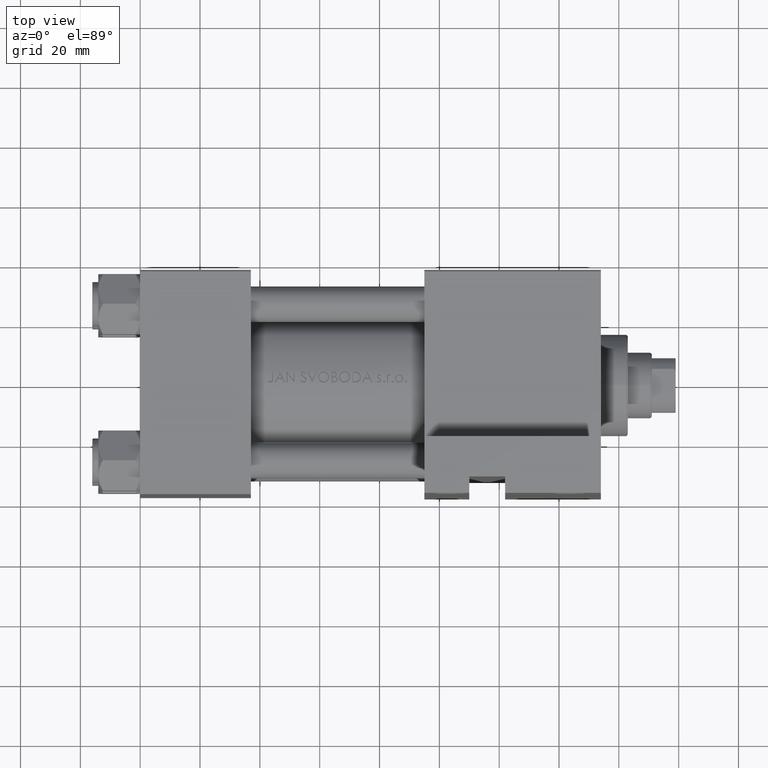
[diagram: clean part render]
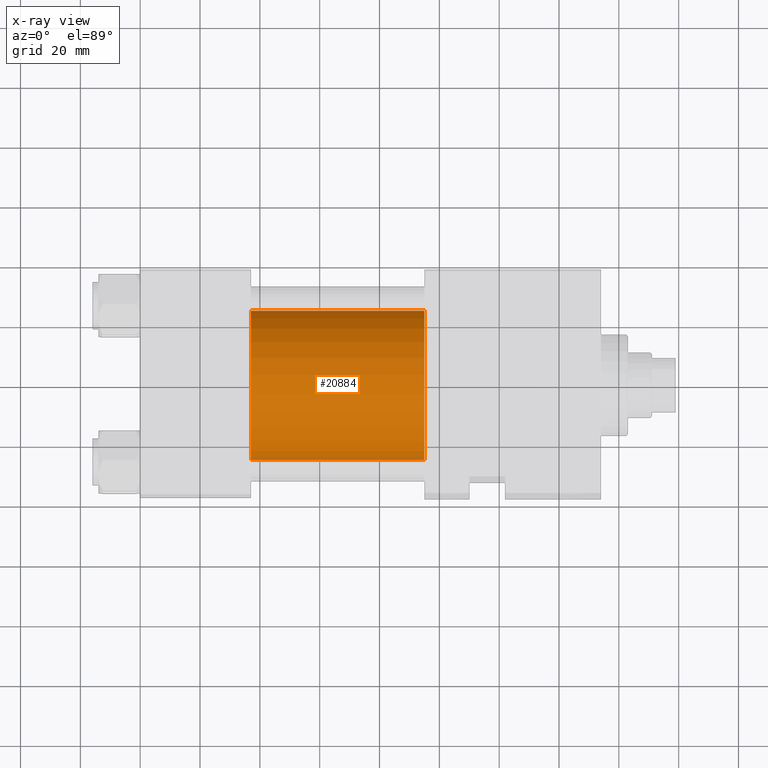
[diagram: x-ray — body ghosted, one internal face saturated and labeled with its STEP entity id]
A machine part, top view, then the same camera in x-ray: the body is ghosted and one INTERNAL B-rep face — a face not visible from any outside direction — is saturated and labeled: STEP entity #20884.
In plain terms, the highlighted cylindrical surface (partial cylindrical patch) has radius 25 mm, axis along (-1, -0, 0).
Its self-contained STEP definition (entity closure, byte-faithful):
#4232 = CARTESIAN_POINT ( 'NONE',  ( 95.00000000000000000, 6.123233995736772199E-17, 24.50000000000000000 ) ) ;
#4463 = DIRECTION ( 'NONE',  ( -1.000000000000000000, -0.000000000000000000, -0.000000000000000000 ) ) ;
#6651 = VECTOR ( 'NONE', #4463, 1000.000000000000000 ) ;
#7039 = AXIS2_PLACEMENT_3D ( 'NONE', #43986, #29041, #43749 ) ;
#9691 = ORIENTED_EDGE ( 'NONE', *, *, #18360, .F. ) ;
#9718 = AXIS2_PLACEMENT_3D ( 'NONE', #12601, #22962, #26570 ) ;
#11420 = VERTEX_POINT ( 'NONE', #16149 ) ;
#12081 = CARTESIAN_POINT ( 'NONE',  ( 37.00000000000000000, 3.122849337825749828E-15, -25.50000000000000355 ) ) ;
#12601 = CARTESIAN_POINT ( 'NONE',  ( 37.00000000000000000, 6.123233995736772199E-17, -0.5000000000000004441 ) ) ;
#13701 = VERTEX_POINT ( 'NONE', #40859 ) ;
#14577 = EDGE_LOOP ( 'NONE', ( #45861, #25580, #44551, #9691 ) ) ;
#16149 = CARTESIAN_POINT ( 'NONE',  ( 95.00000000000000000, 6.123233995736772199E-17, 24.50000000000000000 ) ) ;
#16471 = EDGE_CURVE ( 'NONE', #13701, #35212, #26617, .T. ) ;
#18360 = EDGE_CURVE ( 'NONE', #11420, #13701, #41099, .T. ) ;
#18591 = CIRCLE ( 'NONE', #7039, 25.00000000000000000 ) ;
#20884 = ADVANCED_FACE ( 'NONE', ( #38121 ), #38358, .F. ) ;
#22962 = DIRECTION ( 'NONE',  ( 1.000000000000000000, 0.000000000000000000, 0.000000000000000000 ) ) ;
#24666 = CARTESIAN_POINT ( 'NONE',  ( 95.00000000000000000, 3.122849337825749828E-15, -25.50000000000000355 ) ) ;
#25580 = ORIENTED_EDGE ( 'NONE', *, *, #46755, .T. ) ;
#26570 = DIRECTION ( 'NONE',  ( 0.000000000000000000, 0.000000000000000000, -1.000000000000000000 ) ) ;
#26617 = CIRCLE ( 'NONE', #9718, 25.00000000000000000 ) ;
#27014 = DIRECTION ( 'NONE',  ( 0.000000000000000000, 0.000000000000000000, 1.000000000000000000 ) ) ;
#29041 = DIRECTION ( 'NONE',  ( 1.000000000000000000, 0.000000000000000000, 0.000000000000000000 ) ) ;
#32368 = LINE ( 'NONE', #24666, #42568 ) ;
#32848 = DIRECTION ( 'NONE',  ( -1.000000000000000000, -0.000000000000000000, -0.000000000000000000 ) ) ;
#34988 = DIRECTION ( 'NONE',  ( -1.000000000000000000, -0.000000000000000000, -0.000000000000000000 ) ) ;
#35212 = VERTEX_POINT ( 'NONE', #12081 ) ;
#38121 = FACE_OUTER_BOUND ( 'NONE', #14577, .T. ) ;
#38358 = CYLINDRICAL_SURFACE ( 'NONE', #45129, 25.00000000000000000 ) ;
#40859 = CARTESIAN_POINT ( 'NONE',  ( 37.00000000000000000, 6.123233995736772199E-17, 24.50000000000000000 ) ) ;
#40910 = VERTEX_POINT ( 'NONE', #46110 ) ;
#41099 = LINE ( 'NONE', #4232, #6651 ) ;
#41912 = EDGE_CURVE ( 'NONE', #11420, #40910, #18591, .T. ) ;
#42568 = VECTOR ( 'NONE', #32848, 1000.000000000000000 ) ;
#42700 = CARTESIAN_POINT ( 'NONE',  ( 95.00000000000000000, 6.123233995736772199E-17, -0.5000000000000004441 ) ) ;
#43749 = DIRECTION ( 'NONE',  ( 0.000000000000000000, 0.000000000000000000, -1.000000000000000000 ) ) ;
#43986 = CARTESIAN_POINT ( 'NONE',  ( 95.00000000000000000, 6.123233995736772199E-17, -0.5000000000000004441 ) ) ;
#44551 = ORIENTED_EDGE ( 'NONE', *, *, #16471, .F. ) ;
#45129 = AXIS2_PLACEMENT_3D ( 'NONE', #42700, #34988, #27014 ) ;
#45861 = ORIENTED_EDGE ( 'NONE', *, *, #41912, .T. ) ;
#46110 = CARTESIAN_POINT ( 'NONE',  ( 95.00000000000000000, 3.122849337825749828E-15, -25.50000000000000355 ) ) ;
#46755 = EDGE_CURVE ( 'NONE', #40910, #35212, #32368, .T. ) ;